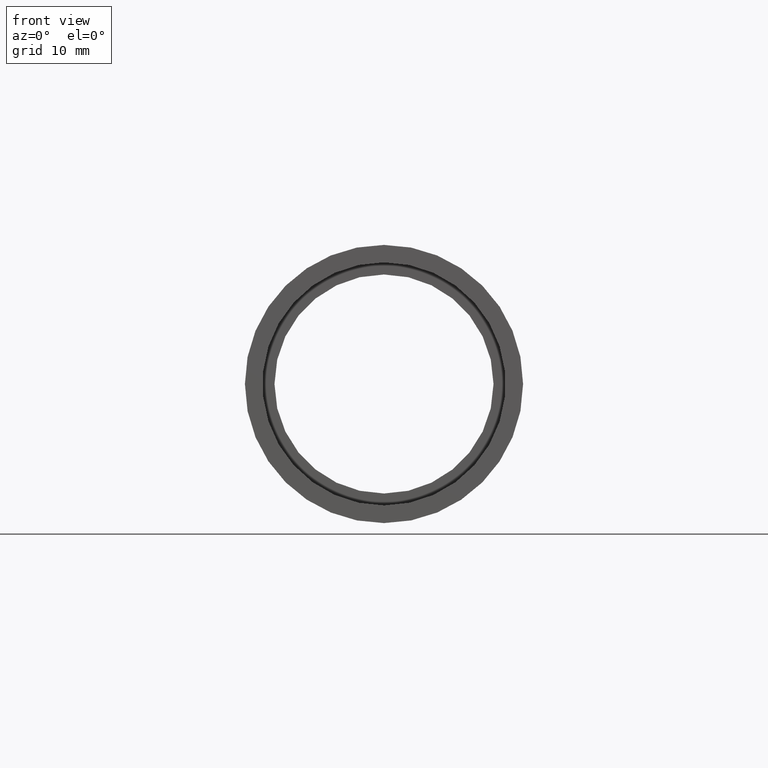
[diagram: clean part render]
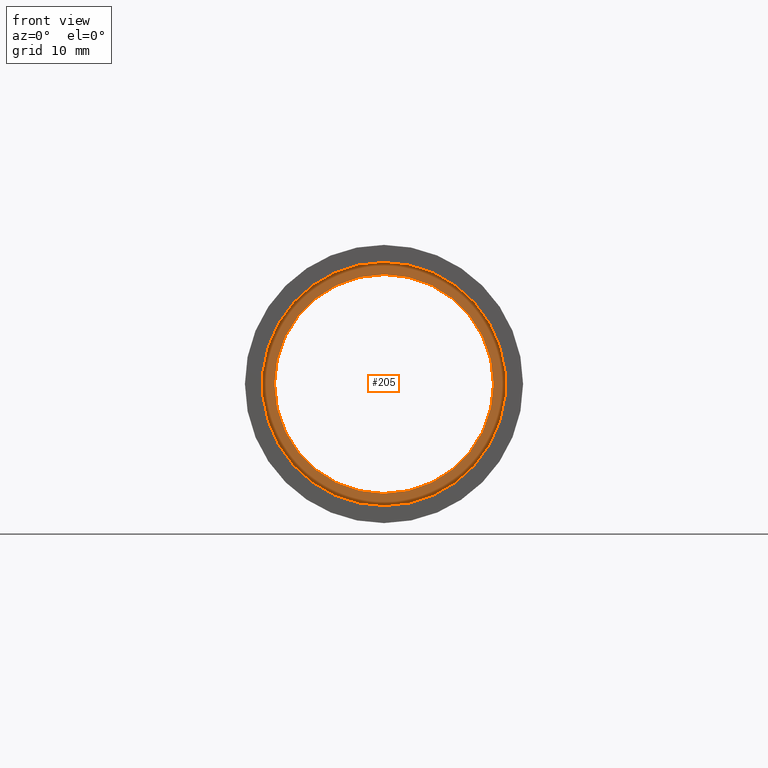
[diagram: same view with one face highlighted and labeled with its STEP entity id]
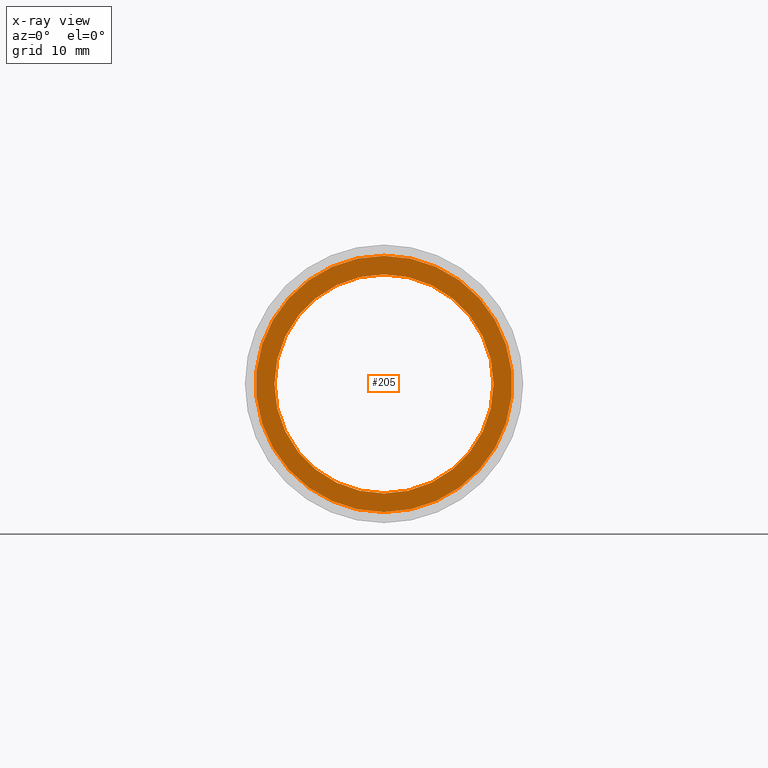
[diagram: x-ray of the same camera — body ghosted, the highlighted face saturated]
A machine part, front view. The second image highlights one B-rep face of the part: STEP entity #205.
The next image is the same camera in x-ray: the body ghosted, the highlighted face saturated — about 0% of this face is hidden behind the body in this view.
In plain terms, the highlighted planar face has unit normal (-0, 1, 0).
Its self-contained STEP definition (entity closure, byte-faithful):
#25 = CARTESIAN_POINT ( 'NONE',  ( 0.0000000000000000000, 5.499999999999976900, 11.70000000000001700 ) ) ;
#32 = VERTEX_POINT ( 'NONE', #122 ) ;
#91 = CIRCLE ( 'NONE', #527, 10.00000000000002000 ) ;
#117 = DIRECTION ( 'NONE',  ( 0.0000000000000000000, 0.0000000000000000000, 1.000000000000000000 ) ) ;
#122 = CARTESIAN_POINT ( 'NONE',  ( 1.432836755002405500E-015, 5.499999999999976900, -11.70000000000001700 ) ) ;
#142 = CARTESIAN_POINT ( 'NONE',  ( 0.0000000000000000000, 5.499999999999976900, 10.00000000000002000 ) ) ;
#151 = FACE_BOUND ( 'NONE', #317, .T. ) ;
#155 = CARTESIAN_POINT ( 'NONE',  ( 11.70000000000001700, 5.499999999999984000, 0.0000000000000000000 ) ) ;
#162 = PLANE ( 'NONE',  #441 ) ;
#174 = DIRECTION ( 'NONE',  ( 0.0000000000000000000, 0.0000000000000000000, 1.000000000000000000 ) ) ;
#192 = EDGE_CURVE ( 'NONE', #32, #338, #601, .T. ) ;
#198 = DIRECTION ( 'NONE',  ( 0.0000000000000000000, 0.0000000000000000000, 1.000000000000000000 ) ) ;
#205 = ADVANCED_FACE ( 'NONE', ( #316, #151 ), #162, .F. ) ;
#238 = CARTESIAN_POINT ( 'NONE',  ( 1.224646799147355400E-015, 5.499999999999976900, -10.00000000000002000 ) ) ;
#249 = DIRECTION ( 'NONE',  ( -0.0000000000000000000, 1.000000000000000000, 0.0000000000000000000 ) ) ;
#286 = DIRECTION ( 'NONE',  ( -0.0000000000000000000, 1.000000000000000000, -0.0000000000000000000 ) ) ;
#287 = DIRECTION ( 'NONE',  ( 0.0000000000000000000, 0.0000000000000000000, 1.000000000000000000 ) ) ;
#296 = EDGE_CURVE ( 'NONE', #435, #467, #537, .T. ) ;
#300 = EDGE_LOOP ( 'NONE', ( #363, #504 ) ) ;
#316 = FACE_OUTER_BOUND ( 'NONE', #300, .T. ) ;
#317 = EDGE_LOOP ( 'NONE', ( #521, #445 ) ) ;
#338 = VERTEX_POINT ( 'NONE', #25 ) ;
#343 = CARTESIAN_POINT ( 'NONE',  ( 0.0000000000000000000, 5.499999999999976900, 0.0000000000000000000 ) ) ;
#351 = EDGE_CURVE ( 'NONE', #338, #32, #380, .T. ) ;
#363 = ORIENTED_EDGE ( 'NONE', *, *, #351, .F. ) ;
#380 = CIRCLE ( 'NONE', #588, 11.70000000000001700 ) ;
#400 = DIRECTION ( 'NONE',  ( -0.0000000000000000000, 1.000000000000000000, -0.0000000000000000000 ) ) ;
#401 = DIRECTION ( 'NONE',  ( -0.0000000000000000000, 1.000000000000000000, -0.0000000000000000000 ) ) ;
#419 = AXIS2_PLACEMENT_3D ( 'NONE', #450, #401, #117 ) ;
#435 = VERTEX_POINT ( 'NONE', #238 ) ;
#439 = EDGE_CURVE ( 'NONE', #467, #435, #91, .T. ) ;
#441 = AXIS2_PLACEMENT_3D ( 'NONE', #155, #249, #590 ) ;
#445 = ORIENTED_EDGE ( 'NONE', *, *, #296, .T. ) ;
#450 = CARTESIAN_POINT ( 'NONE',  ( 0.0000000000000000000, 5.499999999999976900, 0.0000000000000000000 ) ) ;
#467 = VERTEX_POINT ( 'NONE', #142 ) ;
#504 = ORIENTED_EDGE ( 'NONE', *, *, #192, .F. ) ;
#505 = CARTESIAN_POINT ( 'NONE',  ( 0.0000000000000000000, 5.499999999999976900, 0.0000000000000000000 ) ) ;
#521 = ORIENTED_EDGE ( 'NONE', *, *, #439, .T. ) ;
#527 = AXIS2_PLACEMENT_3D ( 'NONE', #343, #286, #287 ) ;
#537 = CIRCLE ( 'NONE', #419, 10.00000000000002000 ) ;
#588 = AXIS2_PLACEMENT_3D ( 'NONE', #505, #615, #174 ) ;
#590 = DIRECTION ( 'NONE',  ( 0.0000000000000000000, 0.0000000000000000000, 1.000000000000000000 ) ) ;
#594 = CARTESIAN_POINT ( 'NONE',  ( 0.0000000000000000000, 5.499999999999976900, 0.0000000000000000000 ) ) ;
#601 = CIRCLE ( 'NONE', #616, 11.70000000000001700 ) ;
#615 = DIRECTION ( 'NONE',  ( -0.0000000000000000000, 1.000000000000000000, -0.0000000000000000000 ) ) ;
#616 = AXIS2_PLACEMENT_3D ( 'NONE', #594, #400, #198 ) ;